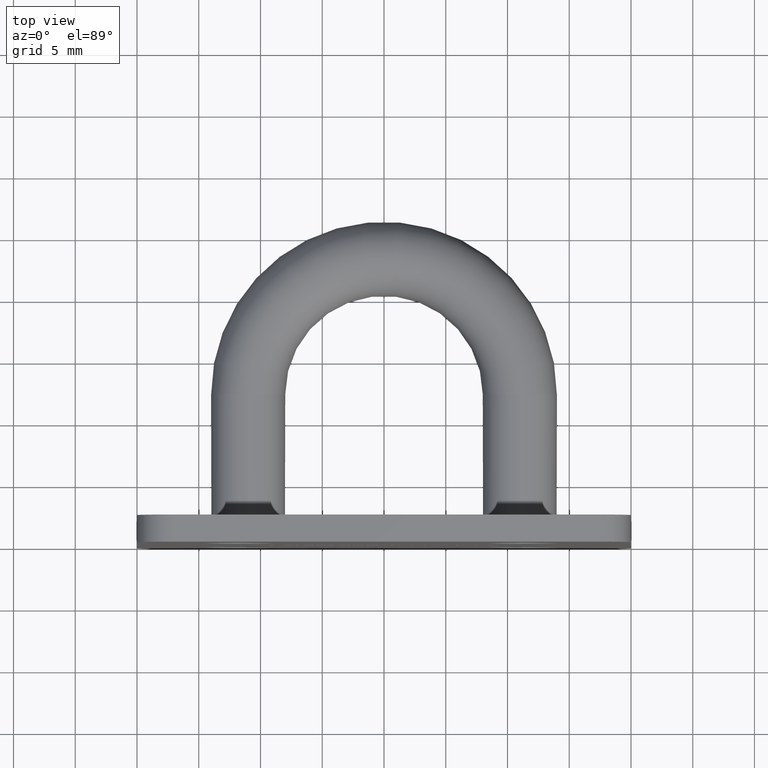
[diagram: clean part render]
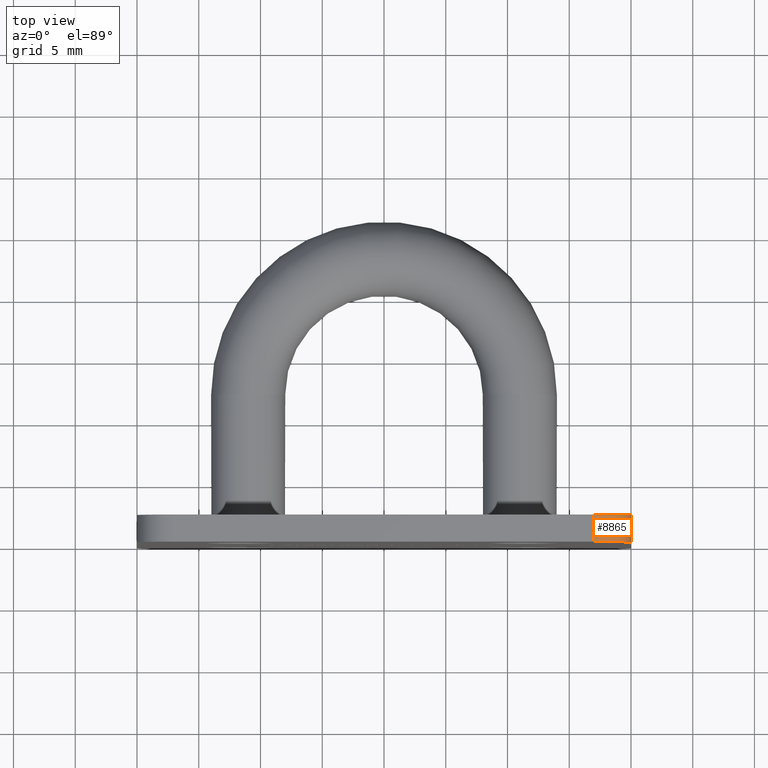
[diagram: same view with one face highlighted and labeled with its STEP entity id]
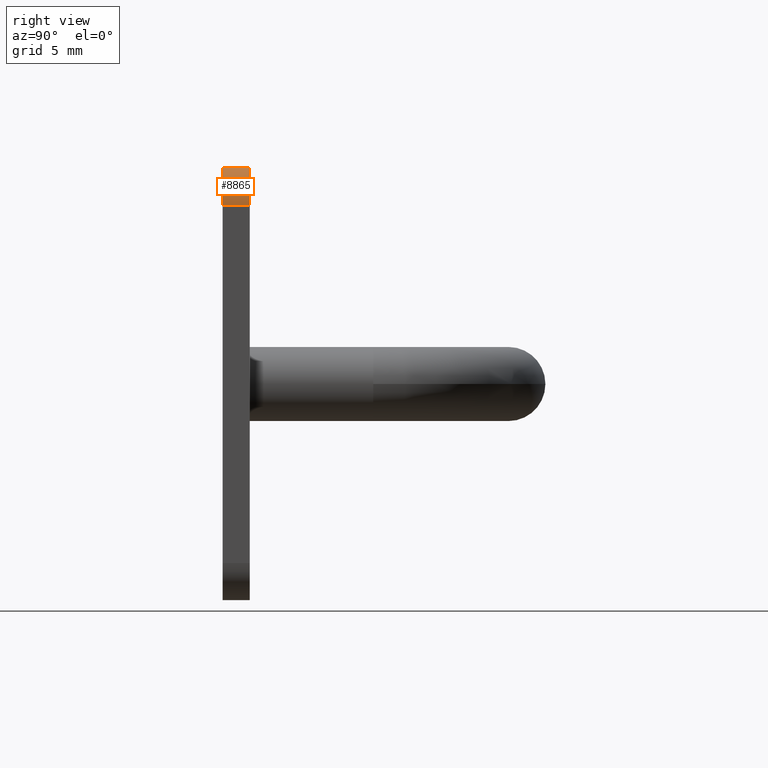
[diagram: same view with one face highlighted and labeled with its STEP entity id]
A machine part, top view. The second image highlights one B-rep face of the part: STEP entity #8865.
A second angle (right view) of the same face is appended — the face is thin or edge-on in the first view.
In plain terms, the highlighted cylindrical surface (partial cylindrical patch) has radius 3 mm, axis along (0, -1, 0).
Its self-contained STEP definition (entity closure, byte-faithful):
#592 = AXIS2_PLACEMENT_3D ( 'NONE', #11880, #3917, #9522 ) ;
#1172 = EDGE_LOOP ( 'NONE', ( #11292, #6207, #6050, #7614 ) ) ;
#1400 = CARTESIAN_POINT ( 'NONE',  ( 16.99999999999999600, 2.200000000000000200, 14.50000000000000200 ) ) ;
#1545 = CARTESIAN_POINT ( 'NONE',  ( 16.99999999999999600, 2.200000000000000200, 17.50000000000000000 ) ) ;
#1596 = DIRECTION ( 'NONE',  ( -0.0000000000000000000, 1.000000000000000000, -0.0000000000000000000 ) ) ;
#2197 = EDGE_CURVE ( 'NONE', #8780, #9241, #3794, .T. ) ;
#2206 = EDGE_CURVE ( 'NONE', #14180, #8780, #6234, .T. ) ;
#2429 = CIRCLE ( 'NONE', #592, 2.999999999999999100 ) ;
#2583 = DIRECTION ( 'NONE',  ( -0.0000000000000000000, 1.000000000000000000, -0.0000000000000000000 ) ) ;
#3668 = FACE_OUTER_BOUND ( 'NONE', #1172, .T. ) ;
#3794 = CIRCLE ( 'NONE', #14415, 2.999999999999999100 ) ;
#3917 = DIRECTION ( 'NONE',  ( 0.0000000000000000000, -1.000000000000000000, 0.0000000000000000000 ) ) ;
#3949 = DIRECTION ( 'NONE',  ( 0.0000000000000000000, -1.000000000000000000, 0.0000000000000000000 ) ) ;
#4970 = CARTESIAN_POINT ( 'NONE',  ( 19.99999999999999600, 2.200000000000000200, 14.50000000000000200 ) ) ;
#6050 = ORIENTED_EDGE ( 'NONE', *, *, #7235, .F. ) ;
#6207 = ORIENTED_EDGE ( 'NONE', *, *, #2206, .F. ) ;
#6234 = LINE ( 'NONE', #1545, #8671 ) ;
#6505 = CARTESIAN_POINT ( 'NONE',  ( 16.99999999999999600, 2.200000000000000200, 14.50000000000000200 ) ) ;
#6780 = AXIS2_PLACEMENT_3D ( 'NONE', #6505, #8760, #9877 ) ;
#6804 = CARTESIAN_POINT ( 'NONE',  ( 19.99999999999999600, 0.0000000000000000000, 14.50000000000000200 ) ) ;
#7235 = EDGE_CURVE ( 'NONE', #13199, #14180, #2429, .T. ) ;
#7614 = ORIENTED_EDGE ( 'NONE', *, *, #14309, .F. ) ;
#8653 = VECTOR ( 'NONE', #3949, 1000.000000000000000 ) ;
#8671 = VECTOR ( 'NONE', #2583, 1000.000000000000000 ) ;
#8760 = DIRECTION ( 'NONE',  ( 0.0000000000000000000, -1.000000000000000000, 0.0000000000000000000 ) ) ;
#8780 = VERTEX_POINT ( 'NONE', #12790 ) ;
#8865 = ADVANCED_FACE ( 'NONE', ( #3668 ), #11891, .T. ) ;
#9241 = VERTEX_POINT ( 'NONE', #10233 ) ;
#9522 = DIRECTION ( 'NONE',  ( 0.0000000000000000000, 0.0000000000000000000, -1.000000000000000000 ) ) ;
#9877 = DIRECTION ( 'NONE',  ( 0.0000000000000000000, 0.0000000000000000000, -1.000000000000000000 ) ) ;
#10233 = CARTESIAN_POINT ( 'NONE',  ( 19.99999999999999600, 2.200000000000000200, 14.50000000000000200 ) ) ;
#11108 = CARTESIAN_POINT ( 'NONE',  ( 16.99999999999999600, 0.0000000000000000000, 17.50000000000000000 ) ) ;
#11285 = LINE ( 'NONE', #4970, #8653 ) ;
#11292 = ORIENTED_EDGE ( 'NONE', *, *, #2197, .F. ) ;
#11880 = CARTESIAN_POINT ( 'NONE',  ( 16.99999999999999600, 0.0000000000000000000, 14.50000000000000200 ) ) ;
#11891 = CYLINDRICAL_SURFACE ( 'NONE', #6780, 2.999999999999999100 ) ;
#12611 = DIRECTION ( 'NONE',  ( 0.0000000000000000000, 0.0000000000000000000, -1.000000000000000000 ) ) ;
#12790 = CARTESIAN_POINT ( 'NONE',  ( 16.99999999999999600, 2.200000000000000200, 17.50000000000000000 ) ) ;
#13199 = VERTEX_POINT ( 'NONE', #6804 ) ;
#14180 = VERTEX_POINT ( 'NONE', #11108 ) ;
#14309 = EDGE_CURVE ( 'NONE', #9241, #13199, #11285, .T. ) ;
#14415 = AXIS2_PLACEMENT_3D ( 'NONE', #1400, #1596, #12611 ) ;